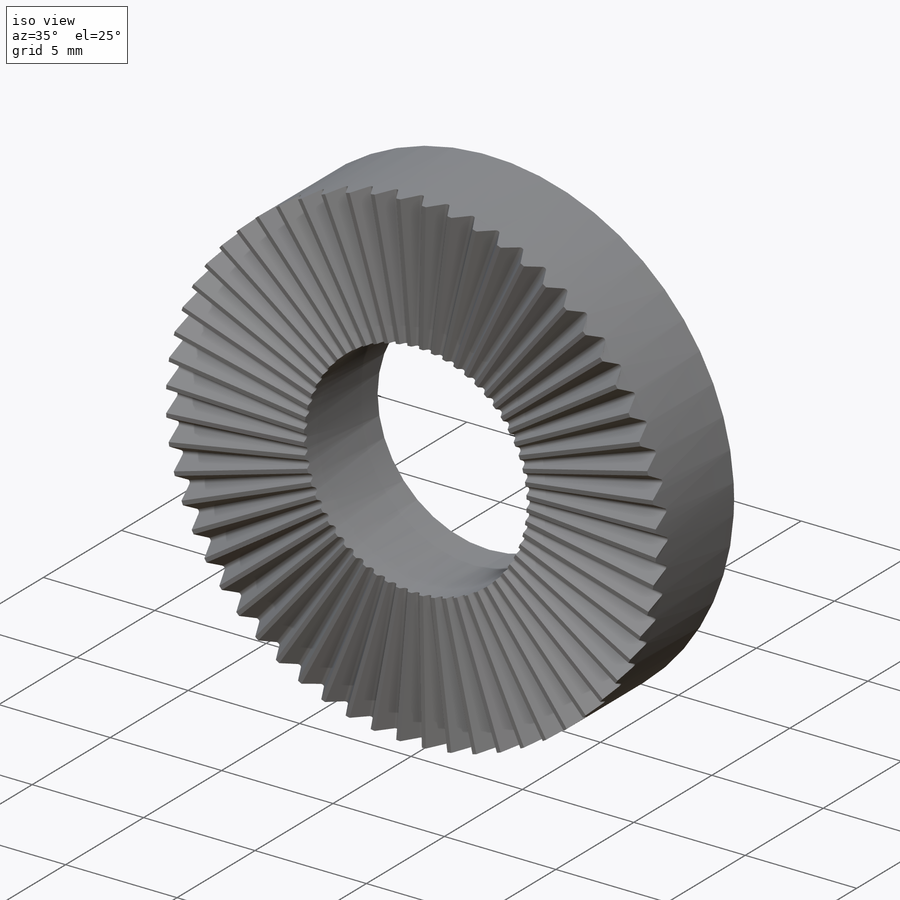
[diagram: iso view]
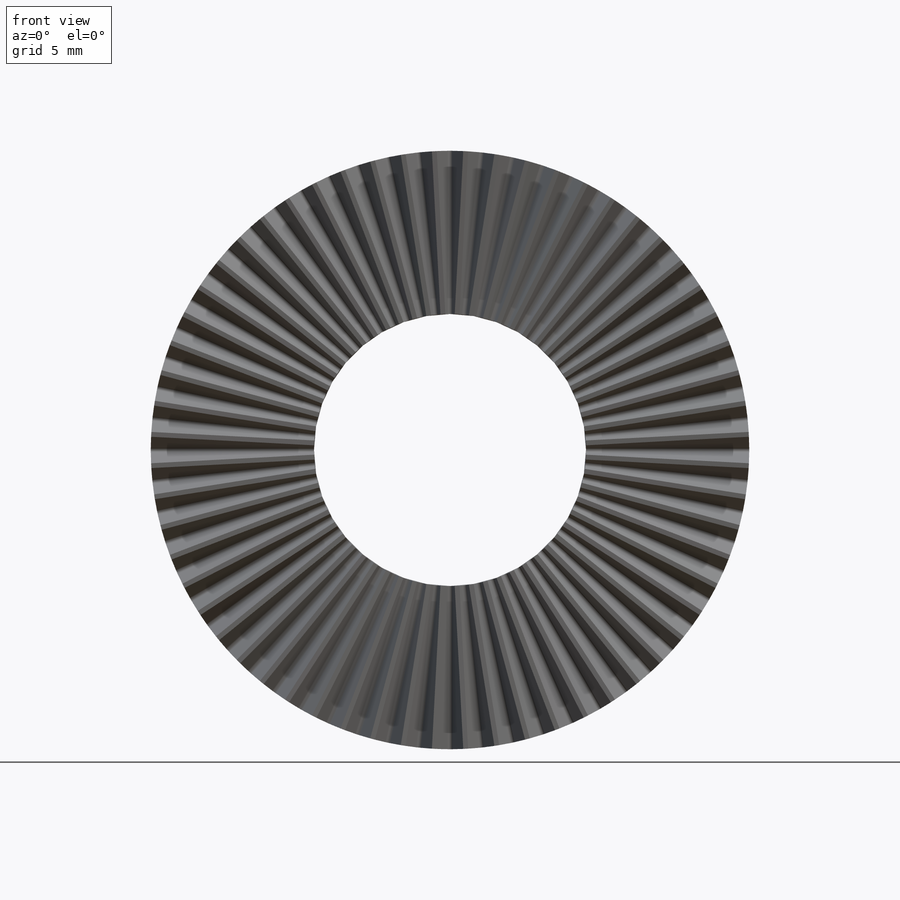
[diagram: front view]
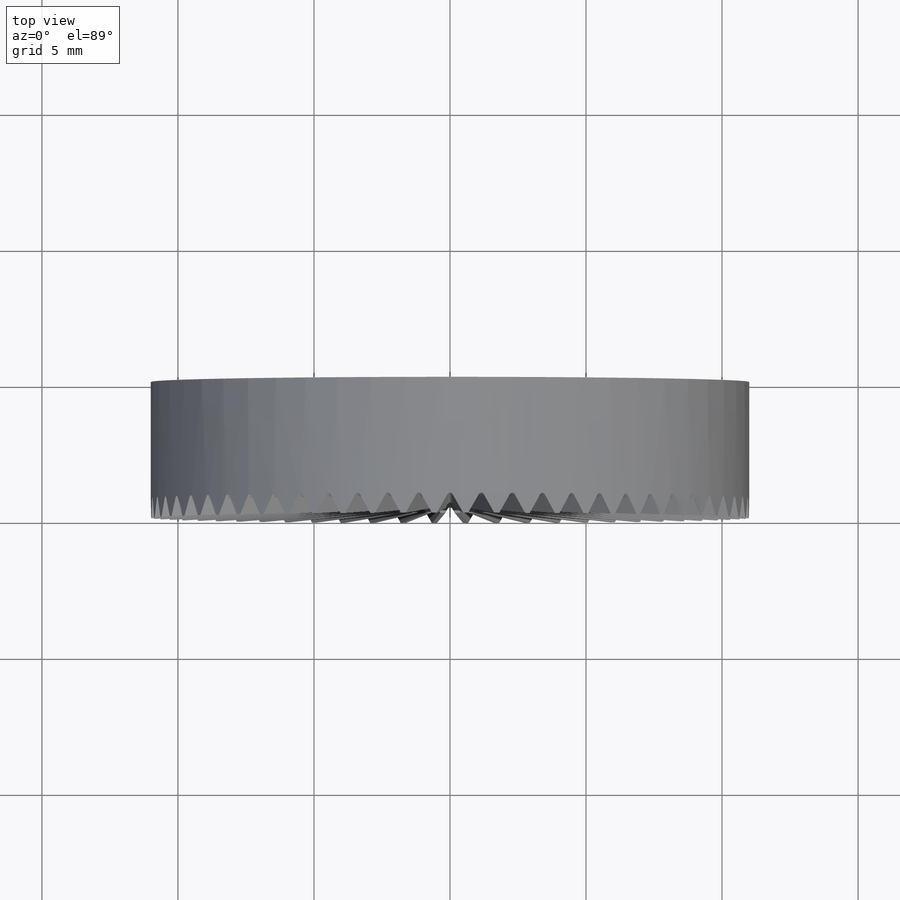
[diagram: top view]
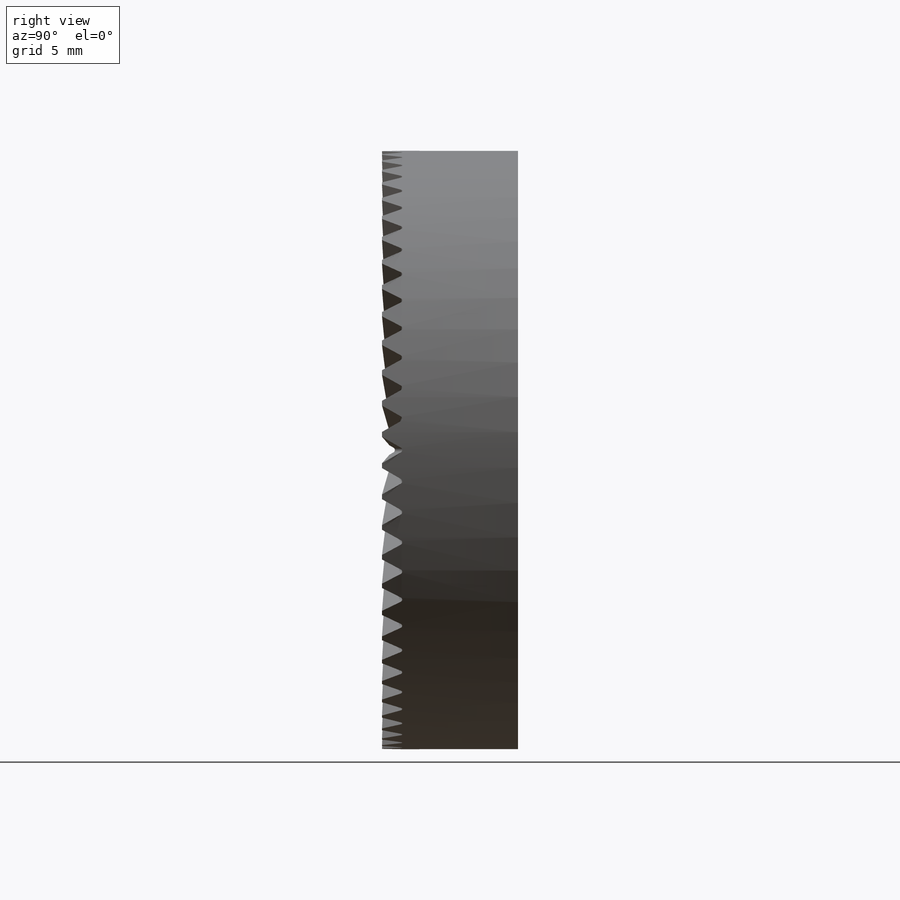
[diagram: right view]
SOLIDWORKS PART (.sldprt)
format: sldprt  version: not decoded by parser v0  size: 654,848 bytes
history: native  units: mm
features: plane x4, sketch x4, material x1, extrude x1, cut_extrude x1, pattern_circular x1, cut_revolve x1 (+10 scaffold rows collapsed)
feature tree (23):
  scaffold x10  (default folders/planes/origin — collapsed)
  material  "Material <nicht festgelegt>"
  plane  "Ebene vorne"
  plane  "Ebene oben"
  plane  "Ebene rechts"
  sketch  "Skizze1"  dims[D1=10.0mm D2=22.0mm]
  extrude  "Aufsatz-Linear austragen1"  Depth=5mm
  sketch  "Skizze2"  dims[D1=22.0mm]
  plane  "Ebene1"
  sketch  "Skizze3"  dims[c1.D2=0.1mm c1.D1=~2.664975mm c2.D1=90.0deg c3.D1=~2.664975mm c4.D1=60.0deg c4.D3=4.85mm c4.D4=1.75mm c4.D5=~0.173205mm]
  cut_extrude  "Schnitt-Linear austragen1"  [1 undecoded]
  pattern_circular  "Kreismuster2"  Count=60 Angle=360deg
  sketch  "Skizze4"  dims[c1.D1=~11.093128mm c2.D1=2.6deg c2.D2=5.0mm c2.D3=11.0mm]
  cut_revolve  "Schnitt-Rotation1"  Angle=360deg
decode coverage: 7 of 8 modeling features carry decoded parameters
note: ~ marks probable driven/reference dimensions
note: 1 parameter value undecoded
note: suppression state not decoded; provenance and decode notes live in map.json
